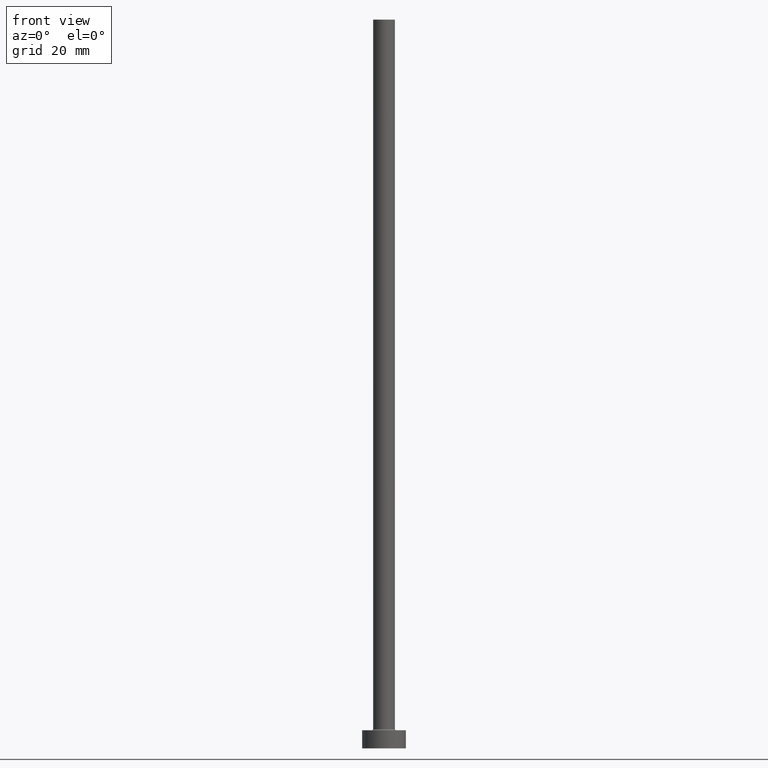
[diagram: clean part render]
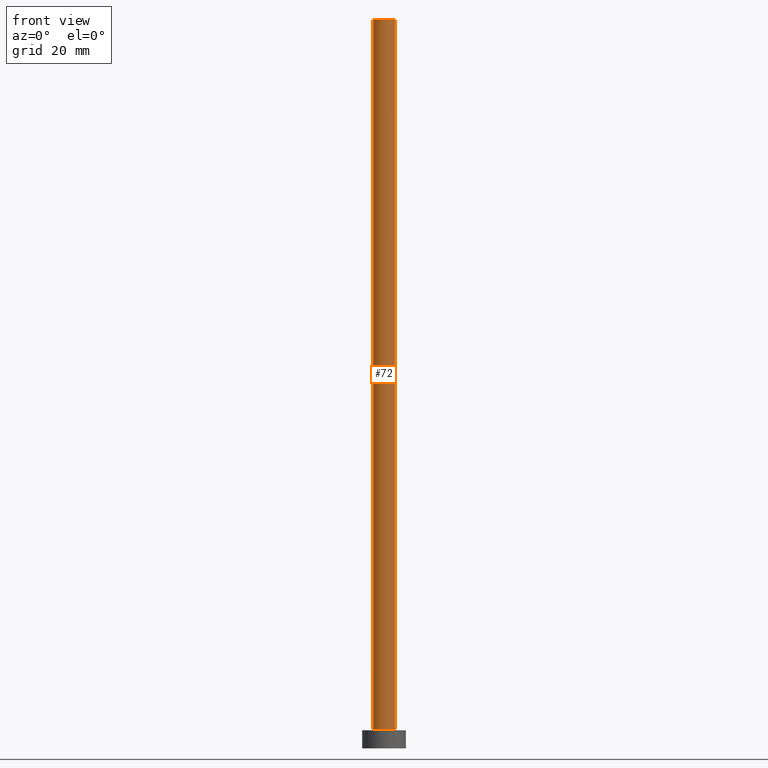
[diagram: same view with one face highlighted and labeled with its STEP entity id]
A machine part, front view. The second image highlights one B-rep face of the part: STEP entity #72.
In plain terms, the highlighted cylindrical surface (edge-blend (fillet) strip) has radius 3 mm, axis along (-0, -0, -1).
Its self-contained STEP definition (entity closure, byte-faithful):
#2 = EDGE_CURVE ( 'NONE', #436, #320, #343, .T. ) ;
#34 = FACE_OUTER_BOUND ( 'NONE', #63, .T. ) ;
#37 = CARTESIAN_POINT ( 'NONE',  ( -3.000000000000000444, 0.000000000000000000, 5.299999999999998934 ) ) ;
#59 = DIRECTION ( 'NONE',  ( 0.000000000000000000, 0.000000000000000000, 1.000000000000000000 ) ) ;
#63 = EDGE_LOOP ( 'NONE', ( #89, #140, #186, #97 ) ) ;
#72 = ADVANCED_FACE ( 'NONE', ( #34 ), #178, .T. ) ;
#79 = CARTESIAN_POINT ( 'NONE',  ( 3.000000000000000444, 3.673940397442060361E-16, 5.299999999999998934 ) ) ;
#82 = CIRCLE ( 'NONE', #378, 3.000000000000000444 ) ;
#89 = ORIENTED_EDGE ( 'NONE', *, *, #2, .F. ) ;
#97 = ORIENTED_EDGE ( 'NONE', *, *, #236, .T. ) ;
#98 = CARTESIAN_POINT ( 'NONE',  ( 3.000000000000000444, 3.673940397442060361E-16, 200.0000000000000000 ) ) ;
#131 = CIRCLE ( 'NONE', #273, 3.000000000000000444 ) ;
#136 = CARTESIAN_POINT ( 'NONE',  ( 0.000000000000000000, 0.000000000000000000, 5.299999999999998934 ) ) ;
#140 = ORIENTED_EDGE ( 'NONE', *, *, #235, .F. ) ;
#167 = DIRECTION ( 'NONE',  ( 1.000000000000000000, 0.000000000000000000, 0.000000000000000000 ) ) ;
#178 = CYLINDRICAL_SURFACE ( 'NONE', #405, 3.000000000000000444 ) ;
#186 = ORIENTED_EDGE ( 'NONE', *, *, #198, .T. ) ;
#198 = EDGE_CURVE ( 'NONE', #314, #294, #361, .T. ) ;
#227 = VECTOR ( 'NONE', #271, 1000.000000000000000 ) ;
#235 = EDGE_CURVE ( 'NONE', #314, #436, #131, .T. ) ;
#236 = EDGE_CURVE ( 'NONE', #294, #320, #82, .T. ) ;
#270 = DIRECTION ( 'NONE',  ( 0.000000000000000000, 0.000000000000000000, 1.000000000000000000 ) ) ;
#271 = DIRECTION ( 'NONE',  ( -0.000000000000000000, -0.000000000000000000, -1.000000000000000000 ) ) ;
#273 = AXIS2_PLACEMENT_3D ( 'NONE', #367, #59, #309 ) ;
#286 = DIRECTION ( 'NONE',  ( -1.000000000000000000, 0.000000000000000000, 0.000000000000000000 ) ) ;
#291 = CARTESIAN_POINT ( 'NONE',  ( -3.000000000000000444, 0.000000000000000000, 200.0000000000000000 ) ) ;
#294 = VERTEX_POINT ( 'NONE', #37 ) ;
#309 = DIRECTION ( 'NONE',  ( 1.000000000000000000, 0.000000000000000000, 0.000000000000000000 ) ) ;
#314 = VERTEX_POINT ( 'NONE', #345 ) ;
#320 = VERTEX_POINT ( 'NONE', #79 ) ;
#343 = LINE ( 'NONE', #374, #227 ) ;
#345 = CARTESIAN_POINT ( 'NONE',  ( -3.000000000000000444, 0.000000000000000000, 200.0000000000000000 ) ) ;
#361 = LINE ( 'NONE', #291, #415 ) ;
#367 = CARTESIAN_POINT ( 'NONE',  ( 0.000000000000000000, 0.000000000000000000, 200.0000000000000000 ) ) ;
#374 = CARTESIAN_POINT ( 'NONE',  ( 3.000000000000000444, 3.673940397442060361E-16, 200.0000000000000000 ) ) ;
#378 = AXIS2_PLACEMENT_3D ( 'NONE', #136, #270, #167 ) ;
#405 = AXIS2_PLACEMENT_3D ( 'NONE', #460, #420, #286 ) ;
#415 = VECTOR ( 'NONE', #421, 1000.000000000000000 ) ;
#420 = DIRECTION ( 'NONE',  ( -0.000000000000000000, -0.000000000000000000, -1.000000000000000000 ) ) ;
#421 = DIRECTION ( 'NONE',  ( -0.000000000000000000, -0.000000000000000000, -1.000000000000000000 ) ) ;
#436 = VERTEX_POINT ( 'NONE', #98 ) ;
#460 = CARTESIAN_POINT ( 'NONE',  ( 0.000000000000000000, 0.000000000000000000, 200.0000000000000000 ) ) ;